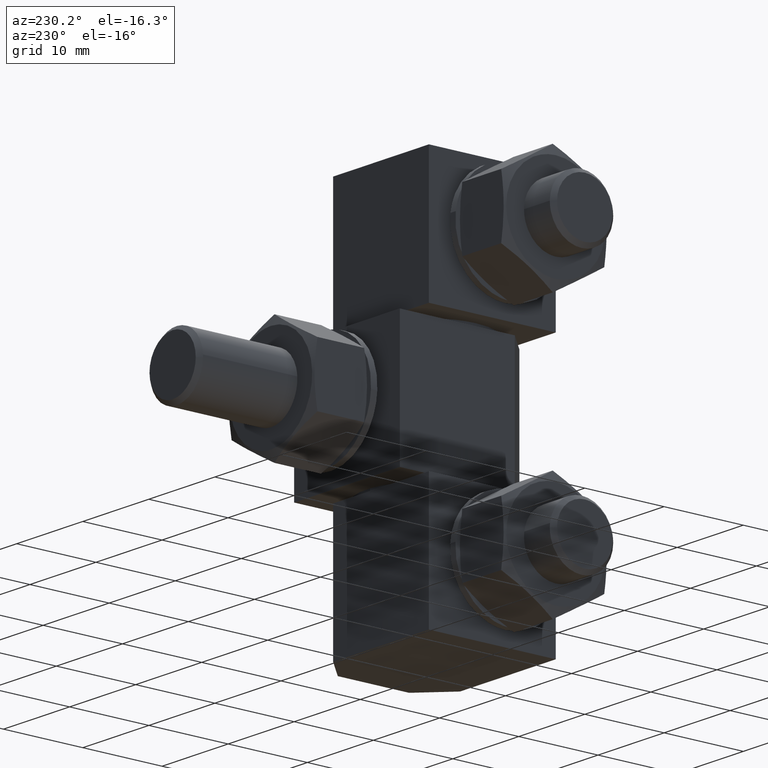
[diagram: clean part render]
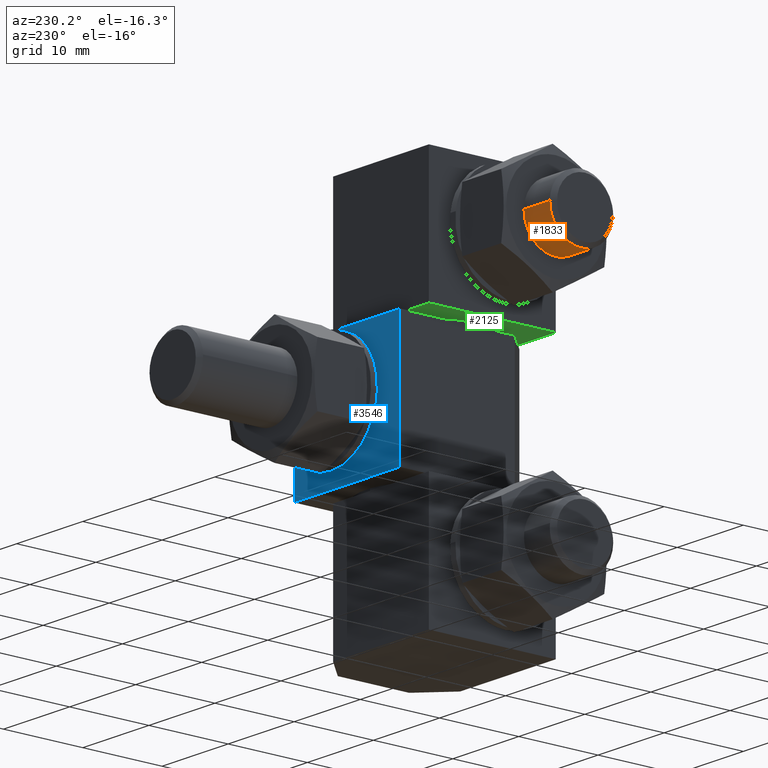
[diagram: same view with three faces highlighted in distinct colors, each labeled with its STEP entity id]
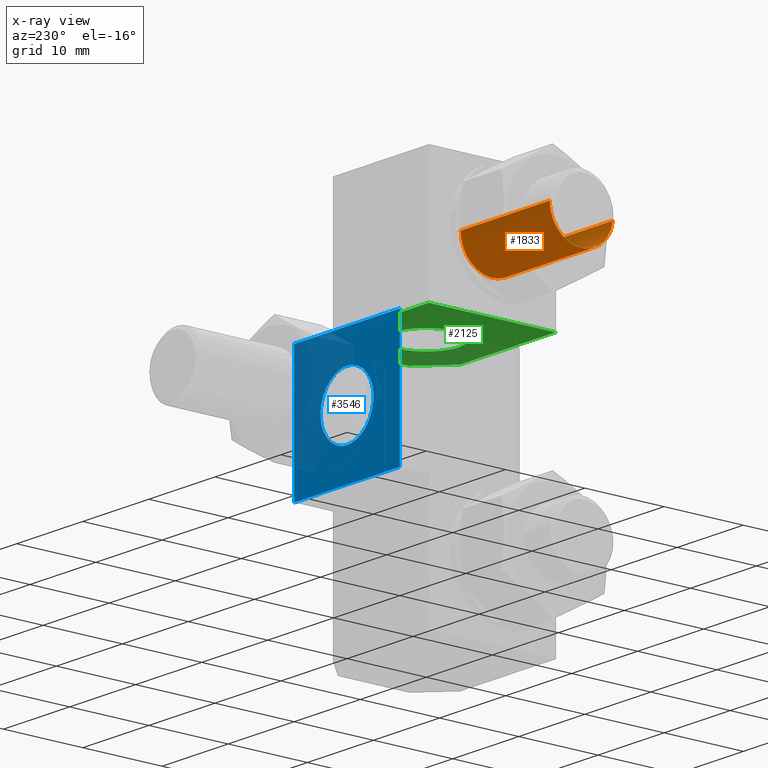
[diagram: x-ray of the same camera — body ghosted, the three highlighted faces saturated]
A machine part, auxiliary view with three faces highlighted in distinct colors.
The next image is the same camera in x-ray (body ghosted, the three faces saturated) — at least one of them is partly hidden behind the body in this view.
Their STEP definitions:

[orange] entity #1833 — the highlighted face is a freeform B-spline surface patch.
#1647=CARTESIAN_POINT('',(-23.500001139938799,-3.999847882238752,7.965094236280362));
#1648=VERTEX_POINT('',#1647);
#1662=CARTESIAN_POINT('',(-23.500001139938799,9.947598E-014,12.000000569969520));
#1663=VERTEX_POINT('',#1662);
#1664=CARTESIAN_POINT('',(-23.500001139938799,9.947598E-014,12.000000569969520));
#1665=CARTESIAN_POINT('',(-23.500001139938796,-4.000000189989721,12.000000569969520));
#1666=CARTESIAN_POINT('',(-23.500001139938799,-4.000000189989720,8.000000379979699));
#1667=CARTESIAN_POINT('',(-23.500001139938803,-4.000000189989720,7.982546975820010));
#1668=CARTESIAN_POINT('',(-23.500001139938799,-3.999847882238753,7.965094236280363));
#1676=(BOUNDED_CURVE()B_SPLINE_CURVE(2,(#1664,#1665,#1666,#1667,#1668),.UNSPECIFIED.,.F.,.U.)B_SPLINE_CURVE_WITH_KNOTS((3,2,3),(0.0,0.250000000000000,0.251539894339205),.UNSPECIFIED.)CURVE()GEOMETRIC_REPRESENTATION_ITEM()RATIONAL_B_SPLINE_CURVE((1.0,0.707106781186548,1.0,0.998195901561431,0.996414028090645))REPRESENTATION_ITEM(''));
#1677=EDGE_CURVE('',#1663,#1648,#1676,.T.);
#1679=CARTESIAN_POINT('',(-23.500001139937378,2.295938399029653,11.275464986381611));
#1680=VERTEX_POINT('',#1679);
#1681=CARTESIAN_POINT('',(-23.500001139937382,2.295938399029654,11.275464986381607));
#1682=CARTESIAN_POINT('',(-23.500001139938799,1.262291041117801,12.000000569969526));
#1683=CARTESIAN_POINT('',(-23.500001139938799,9.947598E-014,12.000000569969520));
#1691=(BOUNDED_CURVE()B_SPLINE_CURVE(2,(#1681,#1682,#1683),.UNSPECIFIED.,.F.,.U.)B_SPLINE_CURVE_WITH_KNOTS((3,3),(0.901326273794635,1.0),.UNSPECIFIED.)CURVE()GEOMETRIC_REPRESENTATION_ITEM()RATIONAL_B_SPLINE_CURVE((0.860049271924642,0.884396538877574,1.0))REPRESENTATION_ITEM(''));
#1692=EDGE_CURVE('',#1680,#1663,#1691,.T.);
#1730=CARTESIAN_POINT('',(-23.500001139938810,3.969065295683563,8.496510398524759));
#1731=VERTEX_POINT('',#1730);
#1732=CARTESIAN_POINT('',(-23.500001139938814,3.969065295683563,8.496510398524757));
#1733=CARTESIAN_POINT('',(-23.500001139938799,3.748829385033068,10.257060391835434));
#1734=CARTESIAN_POINT('',(-23.500001139937375,2.295938399029653,11.275464986381607));
#1742=(BOUNDED_CURVE()B_SPLINE_CURVE(2,(#1732,#1733,#1734),.UNSPECIFIED.,.F.,.U.)B_SPLINE_CURVE_WITH_KNOTS((3,3),(0.771473843422968,0.901326273794634),.UNSPECIFIED.)CURVE()GEOMETRIC_REPRESENTATION_ITEM()RATIONAL_B_SPLINE_CURVE((0.954005596289864,0.828008809804402,0.860049271924641))REPRESENTATION_ITEM(''));
#1743=EDGE_CURVE('',#1731,#1680,#1742,.T.);
#1762=CARTESIAN_POINT('',(-23.837501156562908,3.976075834642602,8.440468886277914));
#1763=CARTESIAN_POINT('',(-23.837501156562908,3.972579071323332,8.468421645053688));
#1764=CARTESIAN_POINT('',(-23.837501156562915,3.526925200052947,12.030931893448457));
#1765=CARTESIAN_POINT('',(-23.837501156562912,-0.034906143651349,11.999848262218970));
#1766=CARTESIAN_POINT('',(-23.837501156562904,-4.034754025890619,11.964942118567519));
#1767=CARTESIAN_POINT('',(-23.837501156562904,-3.999611595732408,7.938018484474698));
#1768=CARTESIAN_POINT('',(-23.837501156562904,-3.999376630564700,7.911094143079646));
#1769=CARTESIAN_POINT('',(-9.654062957934785,3.976075834642602,8.440468886277914));
#1770=CARTESIAN_POINT('',(-9.654062957934785,3.972579071323332,8.468421645053688));
#1771=CARTESIAN_POINT('',(-9.654062957934787,3.526925200052947,12.030931893448457));
#1772=CARTESIAN_POINT('',(-9.654062957934787,-0.034906143651349,11.999848262218970));
#1773=CARTESIAN_POINT('',(-9.654062957934787,-4.034754025890619,11.964942118567519));
#1774=CARTESIAN_POINT('',(-9.654062957934784,-3.999611595732408,7.938018484474698));
#1775=CARTESIAN_POINT('',(-9.654062957934784,-3.999376630564700,7.911094143079646));
#1783=(BOUNDED_SURFACE()B_SPLINE_SURFACE(2,1,((#1762,#1769),(#1763,#1770),(#1764,#1771),(#1765,#1772),(#1766,#1773),(#1767,#1774),(#1768,#1775)),.UNSPECIFIED.,.F.,.F.,.U.)B_SPLINE_SURFACE_WITH_KNOTS((3,1,2,1,3),(2,2),(0.0,0.063630556955771,6.160854484690332,12.788271797445290,12.851895038860000),(0.0,14.183438198628130),.UNSPECIFIED.)GEOMETRIC_REPRESENTATION_ITEM()RATIONAL_B_SPLINE_SURFACE(((0.961610445789247,0.961610445789247),(0.959248281989953,0.959248281989953),(0.730538238691624,0.730538238691624),(1.0,1.0),(0.707106781186548,0.707106781186548),(1.002811776456786,1.002811776456786),(1.005623552913572,1.005623552913572)))REPRESENTATION_ITEM('')SURFACE());
#1784=ORIENTED_EDGE('',*,*,#1743,.T.);
#1785=ORIENTED_EDGE('',*,*,#1692,.T.);
#1786=ORIENTED_EDGE('',*,*,#1677,.T.);
#1787=CARTESIAN_POINT('',(-10.000000474974501,-3.999847882238802,7.965094236286022));
#1788=VERTEX_POINT('',#1787);
#1789=CARTESIAN_POINT('',(-23.500001139938799,-3.999847882238752,7.965094236280362));
#1790=CARTESIAN_POINT('',(-10.000000474974501,-3.999847882238802,7.965094236286022));
#1791=QUASI_UNIFORM_CURVE('',1,(#1789,#1790),.UNSPECIFIED.,.F.,.U.);
#1792=EDGE_CURVE('',#1648,#1788,#1791,.T.);
#1793=ORIENTED_EDGE('',*,*,#1792,.T.);
#1794=CARTESIAN_POINT('',(-10.000000474974501,9.947598E-014,12.000000569969520));
#1795=VERTEX_POINT('',#1794);
#1796=CARTESIAN_POINT('',(-10.000000474974499,-3.999847882238802,7.965094236286022));
#1797=CARTESIAN_POINT('',(-10.000000474974497,-4.000000189989721,7.982546975825668));
#1798=CARTESIAN_POINT('',(-10.000000474974501,-4.000000189989720,8.000000379979699));
#1799=CARTESIAN_POINT('',(-10.000000474974499,-4.000000189989721,12.000000569969520));
#1800=CARTESIAN_POINT('',(-10.000000474974501,9.947598E-014,12.000000569969520));
#1808=(BOUNDED_CURVE()B_SPLINE_CURVE(2,(#1796,#1797,#1798,#1799,#1800),.UNSPECIFIED.,.F.,.U.)B_SPLINE_CURVE_WITH_KNOTS((3,2,3),(0.248460105661294,0.250000000000000,0.500000000000000),.UNSPECIFIED.)CURVE()GEOMETRIC_REPRESENTATION_ITEM()RATIONAL_B_SPLINE_CURVE((0.996414028091798,0.998195901562015,1.0,0.707106781186548,1.0))REPRESENTATION_ITEM(''));
#1809=EDGE_CURVE('',#1788,#1795,#1808,.T.);
#1810=ORIENTED_EDGE('',*,*,#1809,.T.);
#1811=CARTESIAN_POINT('',(-10.000000474974501,3.969065853821406,8.496505936751980));
#1812=VERTEX_POINT('',#1811);
#1813=CARTESIAN_POINT('',(-10.000000474974501,9.947598E-014,12.000000569969520));
#1814=CARTESIAN_POINT('',(-10.000000474974499,3.530800373338553,12.000000569969522));
#1815=CARTESIAN_POINT('',(-10.000000474974499,3.969065853821406,8.496505936751980));
#1823=(BOUNDED_CURVE()B_SPLINE_CURVE(2,(#1813,#1814,#1815),.UNSPECIFIED.,.F.,.U.)B_SPLINE_CURVE_WITH_KNOTS((3,3),(0.500000000000000,0.728526346158174),.UNSPECIFIED.)CURVE()GEOMETRIC_REPRESENTATION_ITEM()RATIONAL_B_SPLINE_CURVE((1.0,0.732264731560221,0.954005964194207))REPRESENTATION_ITEM(''));
#1824=EDGE_CURVE('',#1795,#1812,#1823,.T.);
#1825=ORIENTED_EDGE('',*,*,#1824,.T.);
#1826=CARTESIAN_POINT('',(-23.500001139938810,3.969065295683563,8.496510398524759));
#1827=CARTESIAN_POINT('',(-10.000000474974501,3.969065853821406,8.496505936751980));
#1828=QUASI_UNIFORM_CURVE('',1,(#1826,#1827),.UNSPECIFIED.,.F.,.U.);
#1829=EDGE_CURVE('',#1731,#1812,#1828,.T.);
#1830=ORIENTED_EDGE('',*,*,#1829,.F.);
#1831=EDGE_LOOP('',(#1784,#1785,#1786,#1793,#1810,#1825,#1830));
#1832=FACE_OUTER_BOUND('',#1831,.T.);
#1833=ADVANCED_FACE('',(#1832),#1783,.T.);

[blue] entity #3546 — the highlighted face is a freeform B-spline surface patch.
#3294=CARTESIAN_POINT('',(-3.992539318291822,10.000000474974501,24.744193284546672));
#3295=VERTEX_POINT('',#3294);
#3301=CARTESIAN_POINT('',(0.0,10.000000474974501,28.500001163687500));
#3302=VERTEX_POINT('',#3301);
#3303=CARTESIAN_POINT('',(0.0,10.000000474974501,28.500001163687500));
#3304=CARTESIAN_POINT('',(-3.762826191274380,10.000000474974501,28.500001163687500));
#3305=CARTESIAN_POINT('',(-3.992539318291822,10.000000474974495,24.744193284546665));
#3313=(BOUNDED_CURVE()B_SPLINE_CURVE(2,(#3303,#3304,#3305),.UNSPECIFIED.,.F.,.U.)B_SPLINE_CURVE_WITH_KNOTS((3,3),(0.500000000000000,0.739333050287739),.UNSPECIFIED.)CURVE()GEOMETRIC_REPRESENTATION_ITEM()RATIONAL_B_SPLINE_CURVE((1.0,0.719603890131129,0.976072230372122))REPRESENTATION_ITEM(''));
#3314=EDGE_CURVE('',#3302,#3295,#3313,.T.);
#3316=CARTESIAN_POINT('',(3.972038105449978,10.000000474974501,24.027864225021030));
#3317=VERTEX_POINT('',#3316);
#3318=CARTESIAN_POINT('',(3.972038105449978,10.000000474974499,24.027864225021030));
#3319=CARTESIAN_POINT('',(4.000000000000000,10.000000474974497,24.263104685040005));
#3320=CARTESIAN_POINT('',(4.0,10.000000474974501,24.500001163687500));
#3321=CARTESIAN_POINT('',(4.000000000000000,10.000000474974499,28.500001163687504));
#3322=CARTESIAN_POINT('',(0.0,10.000000474974501,28.500001163687500));
#3330=(BOUNDED_CURVE()B_SPLINE_CURVE(2,(#3318,#3319,#3320,#3321,#3322),.UNSPECIFIED.,.F.,.U.)B_SPLINE_CURVE_WITH_KNOTS((3,2,3),(0.229562473512289,0.250000000000000,0.500000000000000),.UNSPECIFIED.)CURVE()GEOMETRIC_REPRESENTATION_ITEM()RATIONAL_B_SPLINE_CURVE((0.956026754181309,0.976055948329716,1.0,0.707106781186548,1.0))REPRESENTATION_ITEM(''));
#3331=EDGE_CURVE('',#3317,#3302,#3330,.T.);
#3361=CARTESIAN_POINT('',(0.0,10.000000474974501,20.500001163687500));
#3362=VERTEX_POINT('',#3361);
#3363=CARTESIAN_POINT('',(0.0,10.000000474974501,20.500001163687500));
#3364=CARTESIAN_POINT('',(3.552698103734434,10.000000474974499,20.500001163687500));
#3365=CARTESIAN_POINT('',(3.972038105449978,10.000000474974499,24.027864225021030));
#3373=(BOUNDED_CURVE()B_SPLINE_CURVE(2,(#3363,#3364,#3365),.UNSPECIFIED.,.F.,.U.)B_SPLINE_CURVE_WITH_KNOTS((3,3),(0.0,0.229562473512289),.UNSPECIFIED.)CURVE()GEOMETRIC_REPRESENTATION_ITEM()RATIONAL_B_SPLINE_CURVE((1.0,0.731050832856831,0.956026754181309))REPRESENTATION_ITEM(''));
#3374=EDGE_CURVE('',#3362,#3317,#3373,.T.);
#3376=CARTESIAN_POINT('',(-3.992539318291822,10.000000474974495,24.744193284546665));
#3377=CARTESIAN_POINT('',(-4.000000000000001,10.000000474974499,24.622211195385596));
#3378=CARTESIAN_POINT('',(-4.0,10.000000474974501,24.500001163687500));
#3379=CARTESIAN_POINT('',(-4.000000000000000,10.000000474974499,20.500001163687504));
#3380=CARTESIAN_POINT('',(0.0,10.000000474974501,20.500001163687500));
#3388=(BOUNDED_CURVE()B_SPLINE_CURVE(2,(#3376,#3377,#3378,#3379,#3380),.UNSPECIFIED.,.F.,.U.)B_SPLINE_CURVE_WITH_KNOTS((3,2,3),(0.739333050287739,0.750000000000000,1.0),.UNSPECIFIED.)CURVE()GEOMETRIC_REPRESENTATION_ITEM()RATIONAL_B_SPLINE_CURVE((0.976072230372122,0.987502891055419,1.0,0.707106781186548,1.0))REPRESENTATION_ITEM(''));
#3389=EDGE_CURVE('',#3295,#3362,#3388,.T.);
#3414=CARTESIAN_POINT('',(-8.000000379979609,10.000000474974501,16.500000783707950));
#3415=VERTEX_POINT('',#3414);
#3423=CARTESIAN_POINT('',(8.000000379979619,10.000000474974501,16.500000783707950));
#3424=VERTEX_POINT('',#3423);
#3425=CARTESIAN_POINT('',(8.000000379979619,10.000000474974501,16.500000783707950));
#3426=CARTESIAN_POINT('',(-8.000000379979609,10.000000474974501,16.500000783707950));
#3427=QUASI_UNIFORM_CURVE('',1,(#3425,#3426),.UNSPECIFIED.,.F.,.U.);
#3428=EDGE_CURVE('',#3424,#3415,#3427,.T.);
#3470=CARTESIAN_POINT('',(-8.000000379979609,10.000000474974501,32.500001543667047));
#3471=VERTEX_POINT('',#3470);
#3500=CARTESIAN_POINT('',(8.000000379979619,10.000000474974501,32.500001543667047));
#3501=VERTEX_POINT('',#3500);
#3507=CARTESIAN_POINT('',(8.000000379979619,10.000000474974501,32.500001543667047));
#3508=CARTESIAN_POINT('',(-8.000000379979609,10.000000474974501,32.500001543667047));
#3509=QUASI_UNIFORM_CURVE('',1,(#3507,#3508),.UNSPECIFIED.,.F.,.U.);
#3510=EDGE_CURVE('',#3501,#3471,#3509,.T.);
#3521=CARTESIAN_POINT('',(-8.799200029372104,10.000000474974501,33.299200048650313));
#3522=CARTESIAN_POINT('',(-8.799200029372104,10.000000474974501,15.700800419059689));
#3523=CARTESIAN_POINT('',(8.799199600218653,10.000000474974501,33.299200048650313));
#3524=CARTESIAN_POINT('',(8.799199600218653,10.000000474974501,15.700800419059689));
#3525=B_SPLINE_SURFACE_WITH_KNOTS('',1,1,((#3521,#3523),(#3522,#3524)),.UNSPECIFIED.,.F.,.F.,.U.,(2,2),(2,2),(0.0,17.598399629590620),(0.0,17.598399629590759),.UNSPECIFIED.);
#3526=ORIENTED_EDGE('',*,*,#3428,.T.);
#3527=CARTESIAN_POINT('',(-8.000000379979609,10.000000474974501,32.500001543667047));
#3528=CARTESIAN_POINT('',(-8.000000379979609,10.000000474974501,16.500000783707950));
#3529=QUASI_UNIFORM_CURVE('',1,(#3527,#3528),.UNSPECIFIED.,.F.,.U.);
#3530=EDGE_CURVE('',#3471,#3415,#3529,.T.);
#3531=ORIENTED_EDGE('',*,*,#3530,.F.);
#3532=ORIENTED_EDGE('',*,*,#3510,.F.);
#3533=CARTESIAN_POINT('',(8.000000379979619,10.000000474974501,32.500001543667047));
#3534=CARTESIAN_POINT('',(8.000000379979619,10.000000474974501,16.500000783707950));
#3535=QUASI_UNIFORM_CURVE('',1,(#3533,#3534),.UNSPECIFIED.,.F.,.U.);
#3536=EDGE_CURVE('',#3501,#3424,#3535,.T.);
#3537=ORIENTED_EDGE('',*,*,#3536,.T.);
#3538=EDGE_LOOP('',(#3526,#3531,#3532,#3537));
#3539=FACE_OUTER_BOUND('',#3538,.T.);
#3540=ORIENTED_EDGE('',*,*,#3314,.T.);
#3541=ORIENTED_EDGE('',*,*,#3389,.T.);
#3542=ORIENTED_EDGE('',*,*,#3374,.T.);
#3543=ORIENTED_EDGE('',*,*,#3331,.T.);
#3544=EDGE_LOOP('',(#3540,#3541,#3542,#3543));
#3545=FACE_BOUND('',#3544,.T.);
#3546=ADVANCED_FACE('',(#3539,#3545),#3525,.F.);

[green] entity #2125 — the highlighted face is a freeform B-spline surface patch.
#1399=CARTESIAN_POINT('',(0.317759337750648,-4.037515201615006,16.000000759959200));
#1400=VERTEX_POINT('',#1399);
#1406=CARTESIAN_POINT('',(4.050000000000000,0.0,16.000000759959200));
#1407=VERTEX_POINT('',#1406);
#1408=CARTESIAN_POINT('',(4.050000000000000,0.0,16.000000759959200));
#1409=CARTESIAN_POINT('',(4.049999999999999,-3.743781491117377,16.000000759959196));
#1410=CARTESIAN_POINT('',(0.317759337750648,-4.037515201615006,16.000000759959200));
#1418=(BOUNDED_CURVE()B_SPLINE_CURVE(2,(#1408,#1409,#1410),.UNSPECIFIED.,.F.,.U.)B_SPLINE_CURVE_WITH_KNOTS((3,3),(0.0,0.236331300628277),.UNSPECIFIED.)CURVE()GEOMETRIC_REPRESENTATION_ITEM()RATIONAL_B_SPLINE_CURVE((1.0,0.723120658610457,0.969723356162445))REPRESENTATION_ITEM(''));
#1419=EDGE_CURVE('',#1407,#1400,#1418,.T.);
#1421=CARTESIAN_POINT('',(-0.317759337750649,4.037515201615006,16.000000759959200));
#1422=VERTEX_POINT('',#1421);
#1423=CARTESIAN_POINT('',(-0.317759337750649,4.037515201615006,16.000000759959200));
#1424=CARTESIAN_POINT('',(-0.159124933434183,4.050000000000000,16.000000759959196));
#1425=CARTESIAN_POINT('',(0.0,4.050000000000000,16.000000759959200));
#1426=CARTESIAN_POINT('',(4.050000000000001,4.050000000000001,16.000000759959192));
#1427=CARTESIAN_POINT('',(4.050000000000000,0.0,16.000000759959200));
#1435=(BOUNDED_CURVE()B_SPLINE_CURVE(2,(#1423,#1424,#1425,#1426,#1427),.UNSPECIFIED.,.F.,.U.)B_SPLINE_CURVE_WITH_KNOTS((3,2,3),(0.736331300628277,0.750000000000000,1.0),.UNSPECIFIED.)CURVE()GEOMETRIC_REPRESENTATION_ITEM()RATIONAL_B_SPLINE_CURVE((0.969723356162445,0.983986122576090,1.0,0.707106781186548,1.0))REPRESENTATION_ITEM(''));
#1436=EDGE_CURVE('',#1422,#1407,#1435,.T.);
#1512=CARTESIAN_POINT('',(-4.050000000000000,0.0,16.000000759959200));
#1513=VERTEX_POINT('',#1512);
#1514=CARTESIAN_POINT('',(-4.050000000000000,0.0,16.000000759959200));
#1515=CARTESIAN_POINT('',(-4.049999999999998,3.743781491117365,16.000000759959196));
#1516=CARTESIAN_POINT('',(-0.317759337750649,4.037515201615006,16.000000759959200));
#1524=(BOUNDED_CURVE()B_SPLINE_CURVE(2,(#1514,#1515,#1516),.UNSPECIFIED.,.F.,.U.)B_SPLINE_CURVE_WITH_KNOTS((3,3),(0.500000000000000,0.736331300628276),.UNSPECIFIED.)CURVE()GEOMETRIC_REPRESENTATION_ITEM()RATIONAL_B_SPLINE_CURVE((1.0,0.723120658610458,0.969723356162444))REPRESENTATION_ITEM(''));
#1525=EDGE_CURVE('',#1513,#1422,#1524,.T.);
#1527=CARTESIAN_POINT('',(0.317759337750648,-4.037515201615006,16.000000759959200));
#1528=CARTESIAN_POINT('',(0.159124933434183,-4.049999999999999,16.000000759959192));
#1529=CARTESIAN_POINT('',(0.0,-4.050000000000000,16.000000759959200));
#1530=CARTESIAN_POINT('',(-4.050000000000001,-4.050000000000001,16.000000759959192));
#1531=CARTESIAN_POINT('',(-4.050000000000000,0.0,16.000000759959200));
#1539=(BOUNDED_CURVE()B_SPLINE_CURVE(2,(#1527,#1528,#1529,#1530,#1531),.UNSPECIFIED.,.F.,.U.)B_SPLINE_CURVE_WITH_KNOTS((3,2,3),(0.236331300628277,0.250000000000000,0.500000000000000),.UNSPECIFIED.)CURVE()GEOMETRIC_REPRESENTATION_ITEM()RATIONAL_B_SPLINE_CURVE((0.969723356162445,0.983986122576091,1.0,0.707106781186548,1.0))REPRESENTATION_ITEM(''));
#1540=EDGE_CURVE('',#1400,#1513,#1539,.T.);
#1974=CARTESIAN_POINT('',(-10.000000474974501,8.000000379979619,16.000000759959200));
#1975=VERTEX_POINT('',#1974);
#1981=CARTESIAN_POINT('',(4.500000213738500,8.000000379979619,16.000000759959200));
#1982=VERTEX_POINT('',#1981);
#1983=CARTESIAN_POINT('',(4.500000213738500,8.000000379979619,16.000000759959200));
#1984=CARTESIAN_POINT('',(-10.000000474974501,8.000000379979619,16.000000759959200));
#1985=QUASI_UNIFORM_CURVE('',1,(#1983,#1984),.UNSPECIFIED.,.F.,.U.);
#1986=EDGE_CURVE('',#1982,#1975,#1985,.T.);
#2003=CARTESIAN_POINT('',(8.000000379979641,4.500000213738500,16.000000759959200));
#2004=VERTEX_POINT('',#2003);
#2005=CARTESIAN_POINT('',(8.000000379979641,4.500000213738500,16.000000759959200));
#2006=CARTESIAN_POINT('',(4.500000213738500,8.000000379979619,16.000000759959200));
#2007=QUASI_UNIFORM_CURVE('',1,(#2005,#2006),.UNSPECIFIED.,.F.,.U.);
#2008=EDGE_CURVE('',#2004,#1982,#2007,.T.);
#2025=CARTESIAN_POINT('',(8.000000379979710,-4.500000213738519,16.000000759959200));
#2026=VERTEX_POINT('',#2025);
#2027=CARTESIAN_POINT('',(8.000000379979710,-4.500000213738519,16.000000759959200));
#2028=CARTESIAN_POINT('',(8.000000379979641,4.500000213738500,16.000000759959200));
#2029=QUASI_UNIFORM_CURVE('',1,(#2027,#2028),.UNSPECIFIED.,.F.,.U.);
#2030=EDGE_CURVE('',#2026,#2004,#2029,.T.);
#2047=CARTESIAN_POINT('',(4.500000213738500,-8.000000379979600,16.000000759959200));
#2048=VERTEX_POINT('',#2047);
#2049=CARTESIAN_POINT('',(4.500000213738500,-8.000000379979600,16.000000759959200));
#2050=CARTESIAN_POINT('',(8.000000379979710,-4.500000213738519,16.000000759959200));
#2051=QUASI_UNIFORM_CURVE('',1,(#2049,#2050),.UNSPECIFIED.,.F.,.U.);
#2052=EDGE_CURVE('',#2048,#2026,#2051,.T.);
#2069=CARTESIAN_POINT('',(-10.000000474974501,-8.000000379979609,16.000000759959200));
#2070=VERTEX_POINT('',#2069);
#2071=CARTESIAN_POINT('',(-10.000000474974501,-8.000000379979609,16.000000759959200));
#2072=CARTESIAN_POINT('',(4.500000213738500,-8.000000379979600,16.000000759959200));
#2073=QUASI_UNIFORM_CURVE('',1,(#2071,#2072),.UNSPECIFIED.,.F.,.U.);
#2074=EDGE_CURVE('',#2070,#2048,#2073,.T.);
#2091=CARTESIAN_POINT('',(-10.000000474974501,8.000000379979619,16.000000759959200));
#2092=CARTESIAN_POINT('',(-10.000000474974501,-8.000000379979609,16.000000759959200));
#2093=QUASI_UNIFORM_CURVE('',1,(#2091,#2092),.UNSPECIFIED.,.F.,.U.);
#2094=EDGE_CURVE('',#1975,#2070,#2093,.T.);
#2106=CARTESIAN_POINT('',(-10.899099911569930,-8.799200029372106,16.000000759959200));
#2107=CARTESIAN_POINT('',(8.899099494710047,-8.799200029372106,16.000000759959200));
#2108=CARTESIAN_POINT('',(-10.899099911569930,8.799199600218655,16.000000759959200));
#2109=CARTESIAN_POINT('',(8.899099494710047,8.799199600218655,16.000000759959200));
#2110=B_SPLINE_SURFACE_WITH_KNOTS('',1,1,((#2106,#2108),(#2107,#2109)),.UNSPECIFIED.,.F.,.F.,.U.,(2,2),(2,2),(0.0,19.798199406279981),(0.0,17.598399629590759),.UNSPECIFIED.);
#2111=ORIENTED_EDGE('',*,*,#2074,.T.);
#2112=ORIENTED_EDGE('',*,*,#2052,.T.);
#2113=ORIENTED_EDGE('',*,*,#2030,.T.);
#2114=ORIENTED_EDGE('',*,*,#2008,.T.);
#2115=ORIENTED_EDGE('',*,*,#1986,.T.);
#2116=ORIENTED_EDGE('',*,*,#2094,.T.);
#2117=EDGE_LOOP('',(#2111,#2112,#2113,#2114,#2115,#2116));
#2118=FACE_OUTER_BOUND('',#2117,.T.);
#2119=ORIENTED_EDGE('',*,*,#1525,.T.);
#2120=ORIENTED_EDGE('',*,*,#1436,.T.);
#2121=ORIENTED_EDGE('',*,*,#1419,.T.);
#2122=ORIENTED_EDGE('',*,*,#1540,.T.);
#2123=EDGE_LOOP('',(#2119,#2120,#2121,#2122));
#2124=FACE_BOUND('',#2123,.T.);
#2125=ADVANCED_FACE('',(#2118,#2124),#2110,.T.);